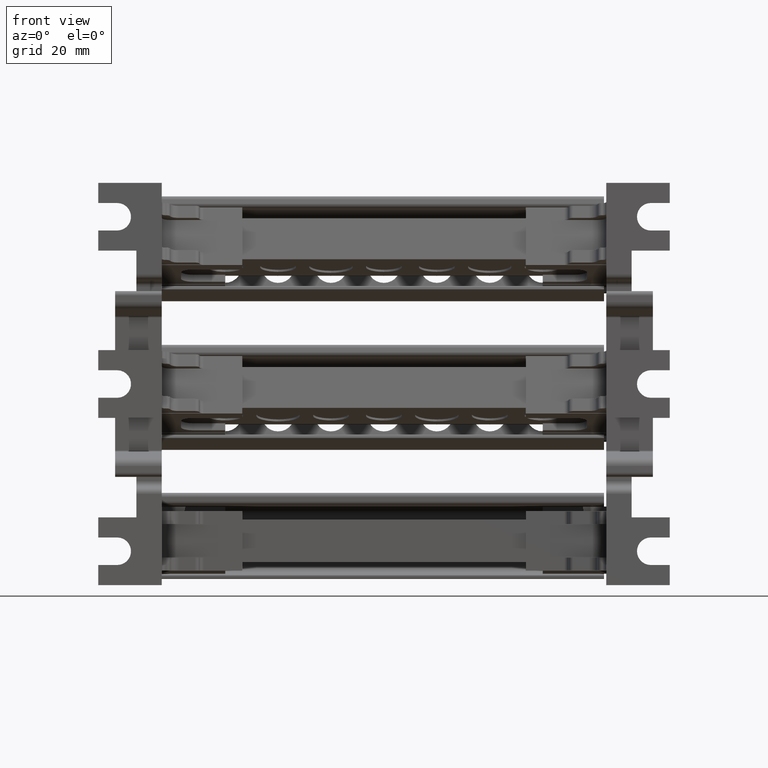
[diagram: clean part render]
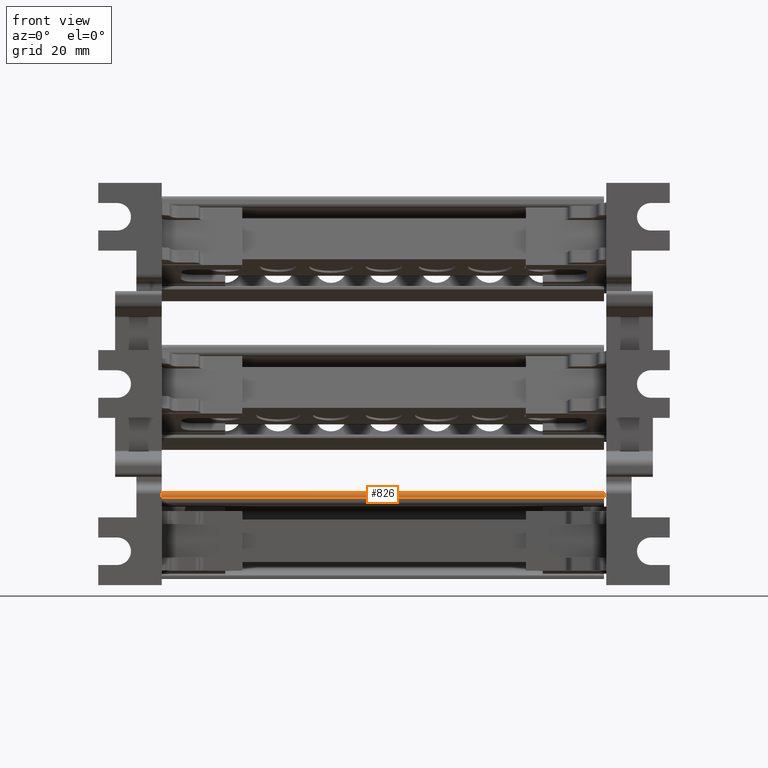
[diagram: same view with one face highlighted and labeled with its STEP entity id]
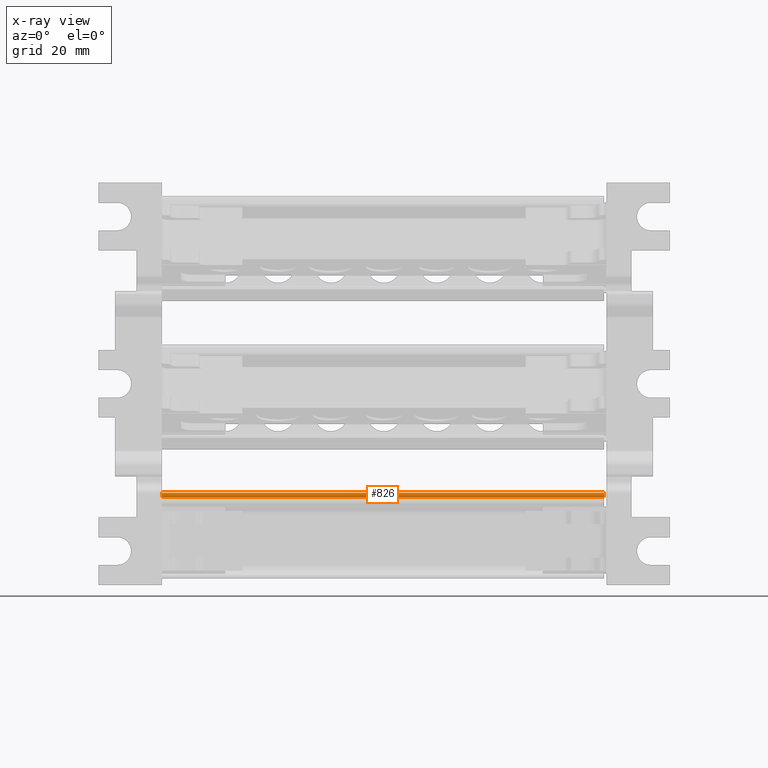
[diagram: x-ray of the same camera — body ghosted, the highlighted face saturated]
A machine part, front view. The second image highlights one B-rep face of the part: STEP entity #826.
The next image is the same camera in x-ray: the body ghosted, the highlighted face saturated — about 0% of this face is hidden behind the body in this view.
In plain terms, the highlighted cylindrical surface (edge-blend (fillet) strip) has radius 1 mm, axis along (-1, 0, -0).
Its self-contained STEP definition (entity closure, byte-faithful):
#826 = ADVANCED_FACE ( 'NONE', ( #27666 ), #27589, .T. ) ;
#1744 = EDGE_CURVE ( 'NONE', #11174, #11172, #78987, .T. ) ;
#4536 = DIRECTION ( 'NONE',  ( 1.000000000000000000, -9.816215852991768300E-015, -1.279887270503663100E-020 ) ) ;
#4557 = LINE ( 'NONE', #4559, #55944 ) ;
#4559 = CARTESIAN_POINT ( 'NONE',  ( 43.67005696747212100, 264.7489368132887600, -23.53236871807219500 ) ) ;
#4636 = DIRECTION ( 'NONE',  ( -1.000000000000000000, 9.816221875545171200E-015, -4.619041198555339300E-015 ) ) ;
#4651 = DIRECTION ( 'NONE',  ( -6.938893903907222100E-015, -1.000000000000000000, 0.0000000000000000000 ) ) ;
#4668 = CARTESIAN_POINT ( 'NONE',  ( 43.67005696747193600, 265.7489368132887600, -23.53236810736831300 ) ) ;
#4689 = DIRECTION ( 'NONE',  ( -6.938893903907222100E-015, -1.000000000000000000, 0.0000000000000000000 ) ) ;
#4718 = CARTESIAN_POINT ( 'NONE',  ( -60.79994303252801300, 265.7489368132897900, -23.53236810736879600 ) ) ;
#4725 = DIRECTION ( 'NONE',  ( 1.000000000000000000, -9.816221875545171200E-015, 4.619041198555339300E-015 ) ) ;
#11172 = VERTEX_POINT ( 'NONE', #75085 ) ;
#11174 = VERTEX_POINT ( 'NONE', #75059 ) ;
#27589 = CYLINDRICAL_SURFACE ( 'NONE', #89857, 1.000000000000000900 ) ;
#27603 = DIRECTION ( 'NONE',  ( -1.000000000000000000, 9.816221875545171200E-015, -4.619041198555339300E-015 ) ) ;
#27604 = CARTESIAN_POINT ( 'NONE',  ( 43.67005696747197200, 265.7489368132887600, -23.53236810736831300 ) ) ;
#27632 = DIRECTION ( 'NONE',  ( -6.938893903907222100E-015, -1.000000000000000000, 0.0000000000000000000 ) ) ;
#27666 = FACE_OUTER_BOUND ( 'NONE', #31960, .T. ) ;
#31960 = EDGE_LOOP ( 'NONE', ( #64782, #64784, #64822, #64751 ) ) ;
#36196 = CARTESIAN_POINT ( 'NONE',  ( 43.67005696747192900, 264.7489368132892800, -23.53236906464523800 ) ) ;
#36239 = CARTESIAN_POINT ( 'NONE',  ( -60.79994303252802000, 264.7489368132902400, -23.53236906464547600 ) ) ;
#55817 = CIRCLE ( 'NONE', #55894, 1.000000000000000900 ) ;
#55894 = AXIS2_PLACEMENT_3D ( 'NONE', #4668, #4636, #4651 ) ;
#55944 = VECTOR ( 'NONE', #4536, 1000.000000000000000 ) ;
#56010 = CIRCLE ( 'NONE', #56111, 1.000000000000000900 ) ;
#56111 = AXIS2_PLACEMENT_3D ( 'NONE', #4718, #4725, #4689 ) ;
#64751 = ORIENTED_EDGE ( 'NONE', *, *, #1744, .T. ) ;
#64782 = ORIENTED_EDGE ( 'NONE', *, *, #93540, .T. ) ;
#64784 = ORIENTED_EDGE ( 'NONE', *, *, #93501, .T. ) ;
#64822 = ORIENTED_EDGE ( 'NONE', *, *, #93519, .T. ) ;
#65920 = VERTEX_POINT ( 'NONE', #36196 ) ;
#65947 = VERTEX_POINT ( 'NONE', #36239 ) ;
#66181 = VECTOR ( 'NONE', #79028, 1000.000000000000000 ) ;
#75059 = CARTESIAN_POINT ( 'NONE',  ( 43.67005696747196500, 265.7751131511023500, -22.53271076640663000 ) ) ;
#75085 = CARTESIAN_POINT ( 'NONE',  ( -60.79994303252804100, 265.7751131511033700, -22.53271076640711000 ) ) ;
#78987 = LINE ( 'NONE', #78993, #66181 ) ;
#78993 = CARTESIAN_POINT ( 'NONE',  ( 43.67005696747196500, 265.7751131511022300, -22.53271076640659500 ) ) ;
#79028 = DIRECTION ( 'NONE',  ( -1.000000000000000000, 9.816221875545171200E-015, -4.619041198555339300E-015 ) ) ;
#89857 = AXIS2_PLACEMENT_3D ( 'NONE', #27604, #27603, #27632 ) ;
#93501 = EDGE_CURVE ( 'NONE', #65947, #65920, #4557, .T. ) ;
#93519 = EDGE_CURVE ( 'NONE', #65920, #11174, #55817, .T. ) ;
#93540 = EDGE_CURVE ( 'NONE', #11172, #65947, #56010, .T. ) ;